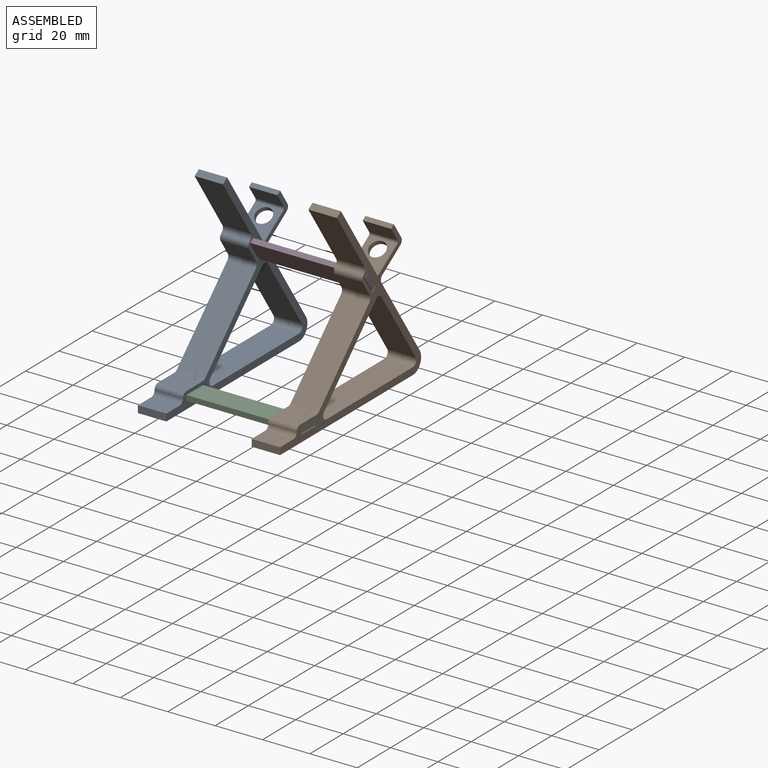
[diagram: assembled view]
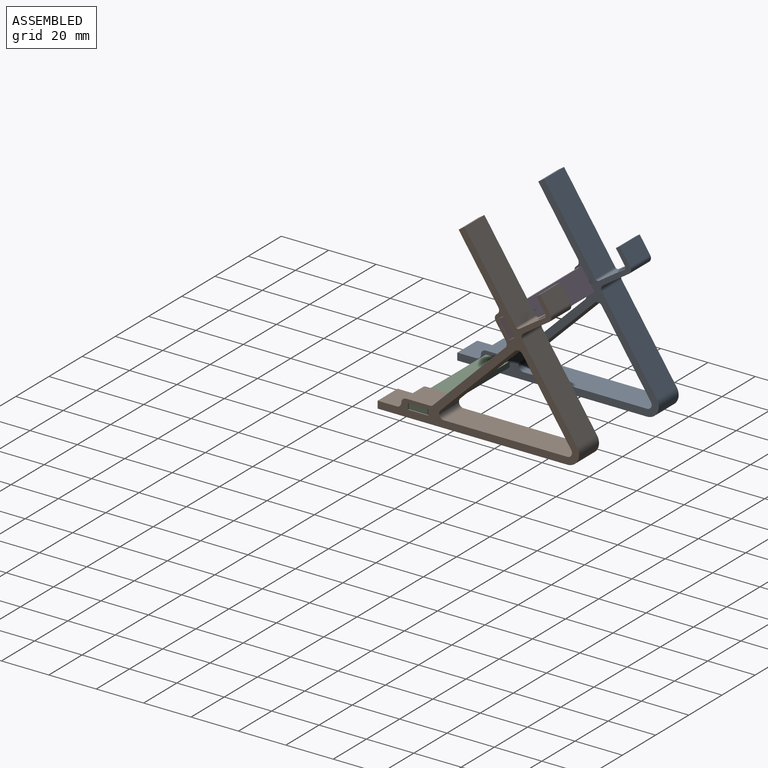
[diagram: assembled view, second angle]
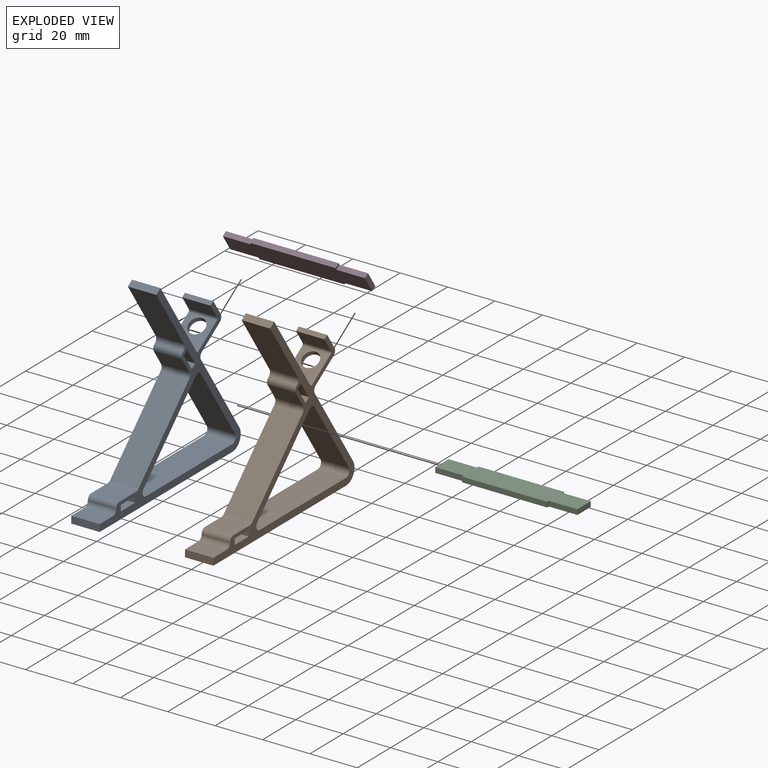
[diagram: exploded view]
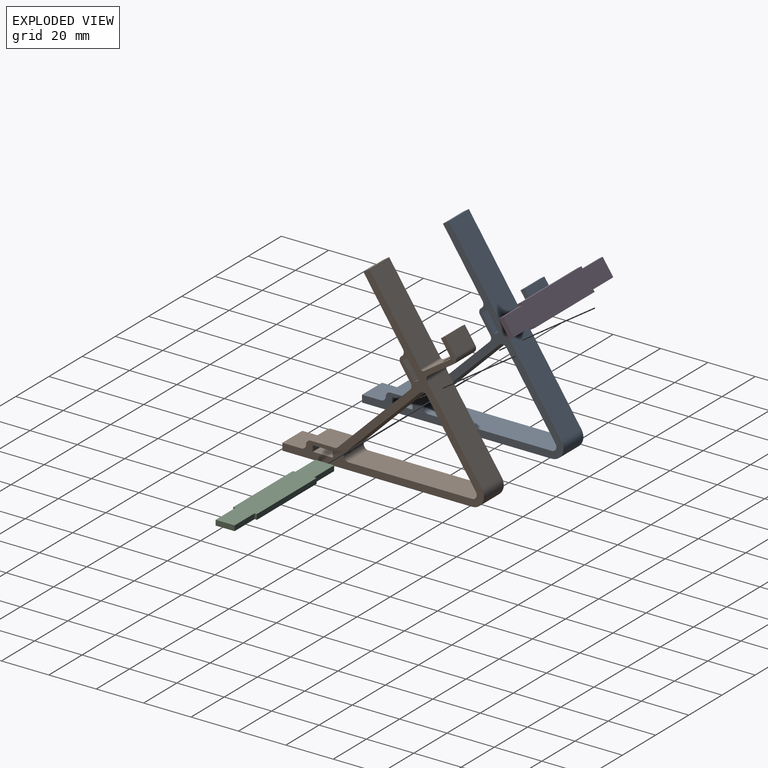
[diagram: exploded view, second angle]
ASSEMBLY  parts=4 mates=2
PART A: 43 faces, bbox 12x85x79 mm
  f0: plane 12x2.08mm, normal (0,0.55,-0.83), area 30mm2, adj f1,f27,f28,f29
  f1: plane 12x7.07mm, normal (0,-0.83,-0.55), area 102mm2, adj f0,f2,f28,f29
  f2: plane 12x2.08mm, normal (0,-0.55,0.83), area 30mm2, adj f1,f27,f28,f29
  f3: plane 52.09x12mm, normal (0,0,1), area 625.1mm2, adj f24,f28,f29,f38
  f4: plane 31.41x31.02mm, normal (0,0.7,-0.71), area 529.8mm2, adj f28,f29,f37,f38
  f5: plane 31.02x20.68mm, normal (0,-0.83,-0.55), area 447.4mm2, adj f24,f28,f29,f37
  f6: plane 12x8mm, normal (0,0,1), area 96mm2, adj f7,f28,f29,f32
  f7: plane 12x3mm, normal (0,-1,0), area 36mm2, adj f6,f8,f28,f29
  f8: plane 80x12mm, normal (0,0,-1), area 960mm2, adj f7,f9,f28,f29
  f9: cylinder r=5mm len=12mm, axis (-1,0,0), area 129.5mm2, adj f8,f10,f28,f29
  f10: plane 34.66x23.11mm, normal (0,0.83,0.55), area 499.9mm2, adj f9,f28,f29,f33
  f11: plane 12x10.82mm, normal (0,0.55,-0.83), area 117.5mm2, adj f28,f29,f30,f33,f34
  f12: plane 12x6.66mm, normal (0,0.83,0.55), area 96mm2, adj f13,f28,f29,f34
  f13: plane 12x1.66mm, normal (0,-0.55,0.83), area 24mm2, adj f12,f14,f28,f29
  f14: plane 12x5.82mm, normal (0,-0.83,-0.55), area 84mm2, adj f13,f28,f29,f41
  f15: plane 12x10.82mm, normal (0,-0.55,0.83), area 117.5mm2, adj f28,f29,f30,f41,f42
  f16: plane 32.45x21.63mm, normal (0,0.83,0.55), area 468mm2, adj f17,f28,f29,f42
  f17: plane 12x2.5mm, normal (0,-0.55,0.83), area 36mm2, adj f16,f18,f28,f29
  f18: plane 25.1x16.73mm, normal (0,-0.83,-0.55), area 362mm2, adj f17,f28,f29,f36
  f19: plane 12x6.53mm, normal (0,-0.83,-0.55), area 94.2mm2, adj f28,f29,f35,f39
  f20: plane 30.47x30.09mm, normal (0,-0.7,0.71), area 513.9mm2, adj f28,f29,f39,f40
  f21: plane 12x2.5mm, normal (0,-1,0), area 30mm2, adj f22,f26,f28,f29
  f22: plane 12x8.5mm, normal (0,0,1), area 102mm2, adj f21,f23,f28,f29
  f23: plane 12x2.5mm, normal (0,1,0), area 30mm2, adj f22,f26,f28,f29
  f24: cylinder r=2mm len=12mm, axis (-1,0,0), area 51.8mm2, adj f3,f5,f28,f29
  f25: plane 12x9.99mm, normal (0,0,1), area 119.9mm2, adj f28,f29,f31,f40
  f26: plane 12x8.5mm, normal (0,0,-1), area 102mm2, adj f21,f23,f28,f29
  f27: plane 12x7.07mm, normal (0,0.83,0.55), area 102mm2, adj f0,f2,f28,f29
  f28: plane 85x79.04mm, normal (1,0,0), area 781.9mm2, adj f0,f1,f2,f3,f4,f5,f6,f7
  f29: plane 85x79.04mm, normal (-1,0,0), area 781.9mm2, adj f0,f1,f2,f3,f4,f5,f6,f7
  f30: cylinder r=3.5mm len=7mm, axis (0,-0.55,0.83), area 44mm2, adj f11,f15
  f31: cylinder r=2mm len=12mm, axis (-1,0,0), area 37.7mm2, adj f25,f28,f29,f32
  f32: cylinder r=2mm len=12mm, axis (-1,0,0), area 37.7mm2, adj f6,f28,f29,f31
  f33: cylinder r=2mm len=12mm, axis (1,0,0), area 37.7mm2, adj f10,f11,f28,f29
  f34: cylinder r=2mm len=12mm, axis (1,0,0), area 37.7mm2, adj f11,f12,f28,f29
  f35: cylinder r=2mm len=12mm, axis (-1,0,0), area 37.7mm2, adj f19,f28,f29,f36
  f36: cylinder r=2mm len=12mm, axis (1,0,0), area 37.7mm2, adj f18,f28,f29,f35
  f37: cylinder r=2mm len=12mm, axis (1,0,0), area 42.3mm2, adj f4,f5,f28,f29
  f38: cylinder r=2mm len=12mm, axis (1,0,0), area 56.7mm2, adj f3,f4,f28,f29
  f39: cylinder r=2mm len=12mm, axis (1,0,0), area 33.1mm2, adj f19,f20,f28,f29
  f40: cylinder r=2mm len=12mm, axis (1,0,0), area 18.7mm2, adj f20,f25,f28,f29
  f41: cylinder r=1mm len=12mm, axis (-1,0,0), area 18.8mm2, adj f14,f15,f28,f29
  f42: cylinder r=1mm len=12mm, axis (1,0,0), area 18.8mm2, adj f15,f16,f28,f29
PART B: same geometry as A
PART C: 14 faces, bbox 60x10x2.2 mm
  f0: plane 8x2.2mm, normal (-1,0,0), area 17.6mm2, adj f1,f11,f12,f13
  f1: plane 12x2.2mm, normal (0,-1,0), area 26.4mm2, adj f0,f2,f12,f13
  f2: plane 2.2x1mm, normal (-1,0,0), area 2.2mm2, adj f1,f3,f12,f13
  f3: plane 36x2.2mm, normal (0,-1,0), area 79.2mm2, adj f2,f4,f12,f13
  f4: plane 2.2x1mm, normal (1,0,0), area 2.2mm2, adj f3,f5,f12,f13
  f5: plane 12x2.2mm, normal (0,-1,0), area 26.4mm2, adj f4,f6,f12,f13
  f6: plane 8x2.2mm, normal (1,0,0), area 17.6mm2, adj f5,f7,f12,f13
  f7: plane 12x2.2mm, normal (0,1,0), area 26.4mm2, adj f6,f8,f12,f13
  f8: plane 2.2x1mm, normal (1,0,0), area 2.2mm2, adj f7,f9,f12,f13
  f9: plane 36x2.2mm, normal (0,1,0), area 79.2mm2, adj f8,f10,f12,f13
  f10: plane 2.2x1mm, normal (-1,0,0), area 2.2mm2, adj f9,f11,f12,f13
  f11: plane 12x2.2mm, normal (0,1,0), area 26.4mm2, adj f0,f10,f12,f13
  f12: plane 60x10mm, normal (0,0,1), area 552mm2, adj f0,f1,f2,f3,f4,f5,f6,f7
  f13: plane 60x10mm, normal (0,0,-1), area 552mm2, adj f0,f1,f2,f3,f4,f5,f6,f7
PART D: same geometry as C
PLACE A t=(-33.09,52.9,-12.51)mm fixed
PLACE B t=(14.91,52.9,-12.51)mm
PLACE C t=(-3.09,-19.38,-9.21)mm
PLACE D rot(axis=(-1,0,0),56.3deg) t=(-3.09,16.91,32.1)mm
MATE fastened D.f12 <-> A.f1  axis (0,0.83,0.55) through (-21.09,18.74,33.32)mm
MATE fastened D.f12 <-> B.f1  axis (0,0.83,0.55) through (14.91,18.74,33.32)mm
